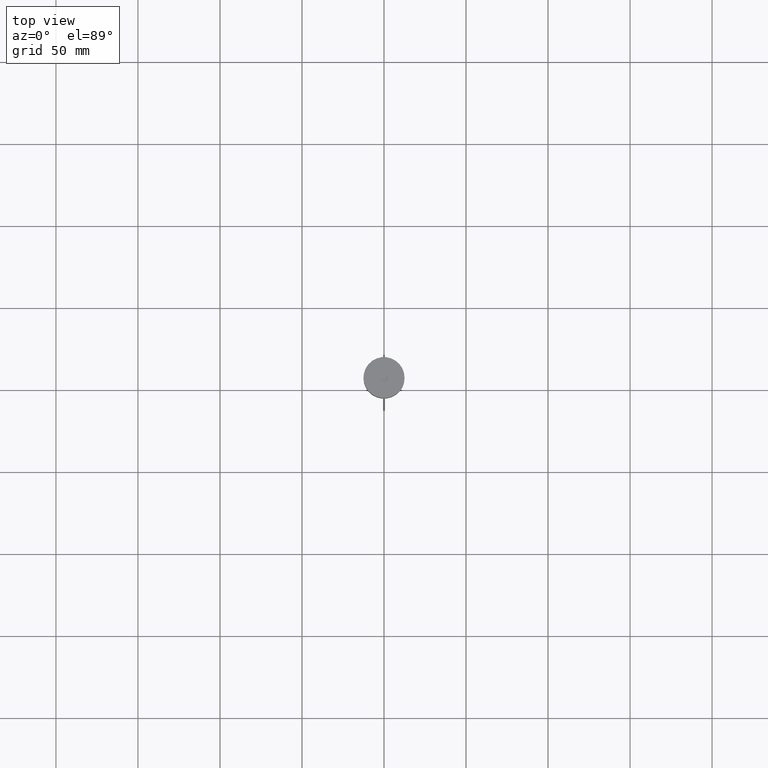
[diagram: clean part render]
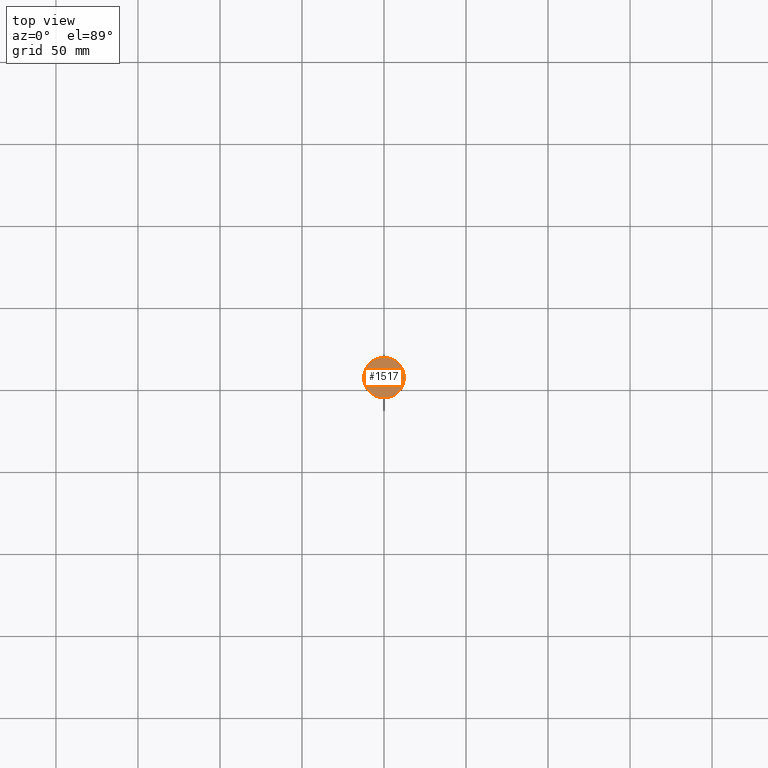
[diagram: same view with one face highlighted and labeled with its STEP entity id]
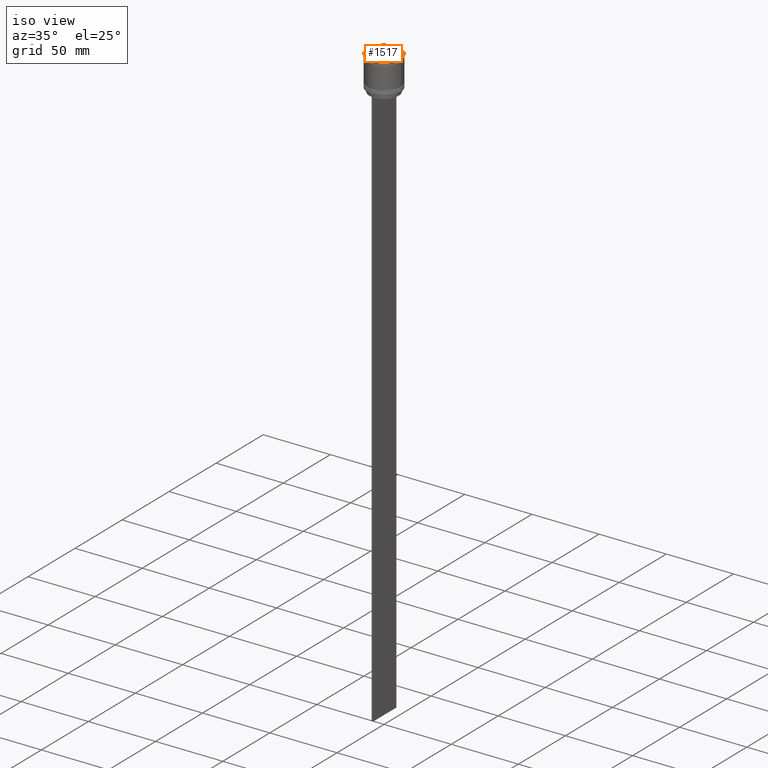
[diagram: same view with one face highlighted and labeled with its STEP entity id]
A machine part, top view. The second image highlights one B-rep face of the part: STEP entity #1517.
A second angle (iso view) of the same face is appended — the face is thin or edge-on in the first view.
In plain terms, the highlighted planar face has unit normal (0, -0, 1).
Its self-contained STEP definition (entity closure, byte-faithful):
#31 = LINE ( 'NONE', #44, #1621 ) ;
#33 = ORIENTED_EDGE ( 'NONE', *, *, #2083, .T. ) ;
#44 = CARTESIAN_POINT ( 'NONE',  ( -0.05000000000000367345, 2.396003617136952535, 0.000000000000000000 ) ) ;
#56 = VERTEX_POINT ( 'NONE', #1070 ) ;
#122 = CARTESIAN_POINT ( 'NONE',  ( 2.100000000000007194, 1.212435565298217943, 0.000000000000000000 ) ) ;
#128 = VECTOR ( 'NONE', #1270, 1000.000000000000000 ) ;
#150 = CARTESIAN_POINT ( 'NONE',  ( -2.100000000000007194, -1.212435565298218831, 0.000000000000000000 ) ) ;
#187 = CARTESIAN_POINT ( 'NONE',  ( 0.05000000000000407591, -2.396003617136953423, 0.000000000000000000 ) ) ;
#234 = DIRECTION ( 'NONE',  ( -0.000000000000000000, -0.000000000000000000, 1.000000000000000000 ) ) ;
#241 = VERTEX_POINT ( 'NONE', #1136 ) ;
#305 = DIRECTION ( 'NONE',  ( 1.000000000000000000, 0.000000000000000000, 0.000000000000000000 ) ) ;
#349 = CARTESIAN_POINT ( 'NONE',  ( -2.100000000000007194, 1.212435565298217943, 0.000000000000000000 ) ) ;
#402 = CARTESIAN_POINT ( 'NONE',  ( -2.050000000000003819, -1.241303078757702183, 0.000000000000000000 ) ) ;
#437 = EDGE_CURVE ( 'NONE', #1079, #1962, #893, .T. ) ;
#477 = DIRECTION ( 'NONE',  ( -0.000000000000000000, -0.000000000000000000, 1.000000000000000000 ) ) ;
#485 = ORIENTED_EDGE ( 'NONE', *, *, #437, .T. ) ;
#533 = DIRECTION ( 'NONE',  ( -0.8660254037844385966, -0.5000000000000002220, 0.000000000000000000 ) ) ;
#569 = CARTESIAN_POINT ( 'NONE',  ( 0.000000000000000000, 0.000000000000000000, 0.000000000000000000 ) ) ;
#578 = CARTESIAN_POINT ( 'NONE',  ( 2.050000000000003819, 1.241303078757701295, 0.000000000000000000 ) ) ;
#581 = EDGE_CURVE ( 'NONE', #56, #1467, #2031, .T. ) ;
#610 = ORIENTED_EDGE ( 'NONE', *, *, #1435, .T. ) ;
#641 = EDGE_LOOP ( 'NONE', ( #1343, #485, #803, #1909, #1232, #610 ) ) ;
#671 = DIRECTION ( 'NONE',  ( 0.8660254037844387076, 0.4999999999999998890, 0.000000000000000000 ) ) ;
#691 = CARTESIAN_POINT ( 'NONE',  ( -2.100000000000007194, 1.154700538379251018, 0.000000000000000000 ) ) ;
#722 = LINE ( 'NONE', #691, #1753 ) ;
#728 = DIRECTION ( 'NONE',  ( -0.8660254037844388186, 0.4999999999999997780, 0.000000000000000000 ) ) ;
#740 = EDGE_CURVE ( 'NONE', #241, #1946, #839, .T. ) ;
#800 = CARTESIAN_POINT ( 'NONE',  ( 12.39999999999999858, 0.000000000000000000, 0.000000000000000000 ) ) ;
#803 = ORIENTED_EDGE ( 'NONE', *, *, #1771, .T. ) ;
#839 = CIRCLE ( 'NONE', #1696, 12.39999999999999858 ) ;
#893 = LINE ( 'NONE', #402, #1622 ) ;
#1050 = DIRECTION ( 'NONE',  ( 0.000000000000000000, 1.000000000000000000, 0.000000000000000000 ) ) ;
#1070 = CARTESIAN_POINT ( 'NONE',  ( 7.253222183746967031E-17, 2.424871130596435886, 0.000000000000000000 ) ) ;
#1079 = VERTEX_POINT ( 'NONE', #1755 ) ;
#1098 = EDGE_CURVE ( 'NONE', #1859, #1079, #1502, .T. ) ;
#1103 = CARTESIAN_POINT ( 'NONE',  ( 0.000000000000000000, 0.000000000000000000, 0.000000000000000000 ) ) ;
#1107 = DIRECTION ( 'NONE',  ( 0.8660254037844387076, -0.4999999999999998890, 0.000000000000000000 ) ) ;
#1136 = CARTESIAN_POINT ( 'NONE',  ( -12.39999999999999858, 1.524685264938454448E-15, 0.000000000000000000 ) ) ;
#1155 = VECTOR ( 'NONE', #533, 999.9999999999998863 ) ;
#1169 = CARTESIAN_POINT ( 'NONE',  ( 0.000000000000000000, 0.000000000000000000, 0.000000000000000000 ) ) ;
#1232 = ORIENTED_EDGE ( 'NONE', *, *, #581, .T. ) ;
#1246 = CARTESIAN_POINT ( 'NONE',  ( 2.100000000000007194, -1.154700538379251684, 0.000000000000000000 ) ) ;
#1270 = DIRECTION ( 'NONE',  ( 0.000000000000000000, -1.000000000000000000, 0.000000000000000000 ) ) ;
#1343 = ORIENTED_EDGE ( 'NONE', *, *, #1098, .T. ) ;
#1388 = AXIS2_PLACEMENT_3D ( 'NONE', #1103, #1740, #1452 ) ;
#1420 = FACE_OUTER_BOUND ( 'NONE', #1956, .T. ) ;
#1428 = VECTOR ( 'NONE', #1107, 1000.000000000000000 ) ;
#1435 = EDGE_CURVE ( 'NONE', #1467, #1859, #1724, .T. ) ;
#1452 = DIRECTION ( 'NONE',  ( 1.000000000000000000, 0.000000000000000000, 0.000000000000000000 ) ) ;
#1467 = VERTEX_POINT ( 'NONE', #122 ) ;
#1502 = LINE ( 'NONE', #187, #1155 ) ;
#1517 = ADVANCED_FACE ( 'NONE', ( #1420, #1897 ), #1607, .T. ) ;
#1607 = PLANE ( 'NONE',  #1388 ) ;
#1621 = VECTOR ( 'NONE', #671, 1000.000000000000000 ) ;
#1622 = VECTOR ( 'NONE', #728, 1000.000000000000114 ) ;
#1677 = EDGE_CURVE ( 'NONE', #1968, #56, #31, .T. ) ;
#1696 = AXIS2_PLACEMENT_3D ( 'NONE', #1169, #477, #305 ) ;
#1724 = LINE ( 'NONE', #1246, #128 ) ;
#1732 = CARTESIAN_POINT ( 'NONE',  ( 2.100000000000007194, -1.212435565298218165, 0.000000000000000000 ) ) ;
#1740 = DIRECTION ( 'NONE',  ( 0.000000000000000000, -0.000000000000000000, 1.000000000000000000 ) ) ;
#1753 = VECTOR ( 'NONE', #1050, 1000.000000000000000 ) ;
#1755 = CARTESIAN_POINT ( 'NONE',  ( 6.025829263321777976E-16, -2.424871130596436775, 0.000000000000000000 ) ) ;
#1771 = EDGE_CURVE ( 'NONE', #1962, #1968, #722, .T. ) ;
#1833 = DIRECTION ( 'NONE',  ( 1.000000000000000000, 0.000000000000000000, 0.000000000000000000 ) ) ;
#1859 = VERTEX_POINT ( 'NONE', #1732 ) ;
#1897 = FACE_BOUND ( 'NONE', #641, .T. ) ;
#1909 = ORIENTED_EDGE ( 'NONE', *, *, #1677, .T. ) ;
#1946 = VERTEX_POINT ( 'NONE', #800 ) ;
#1956 = EDGE_LOOP ( 'NONE', ( #33, #2069 ) ) ;
#1962 = VERTEX_POINT ( 'NONE', #150 ) ;
#1968 = VERTEX_POINT ( 'NONE', #349 ) ;
#1992 = CIRCLE ( 'NONE', #2060, 12.39999999999999858 ) ;
#2031 = LINE ( 'NONE', #578, #1428 ) ;
#2060 = AXIS2_PLACEMENT_3D ( 'NONE', #569, #234, #1833 ) ;
#2069 = ORIENTED_EDGE ( 'NONE', *, *, #740, .T. ) ;
#2083 = EDGE_CURVE ( 'NONE', #1946, #241, #1992, .T. ) ;